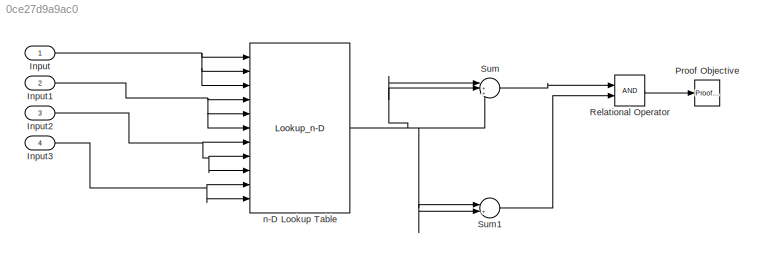
MODEL slx_0ce27d9a9ac0
KIND model
CONFIG AbsTol = auto
CONFIG EnableMultiTasking = off
CONFIG FixedStep = auto
CONFIG MaxStep = auto
CONFIG MinStep = auto
CONFIG RelTol = 1e-3
CONFIG SampleTimeConstraint = Unconstrained
CONFIG Solver = FixedStepAuto
CONFIG SolverName = FixedStepAuto
CONFIG StartTime = 0.0
CONFIG StopTime = 10.0
BLOCK [Inport] Input
  IconDisplay = Port number
  OutDataTypeStr = double
  OutMax = 1.0
  OutMin = 0.0
BLOCK [Inport] Input1
  IconDisplay = Port number
  OutDataTypeStr = double
  OutMax = 1.0
  OutMin = 0.0
  Port = 2
BLOCK [Inport] Input2
  IconDisplay = Port number
  OutDataTypeStr = double
  OutMax = 1.0
  OutMin = 0.0
  Port = 3
BLOCK [Inport] Input3
  IconDisplay = Port number
  OutDataTypeStr = double
  OutMax = 1.0
  OutMin = 0.0
  Port = 4
BLOCK [Reference] Proof Objective  REF=sldvlib/Objectives and Constraints/Proof Objective
  AttributesFormatString = %<intervals>
  Ports = [1]
  SourceBlock = sldvlib/Objectives and Constraints/Proof Objective
  SourceProductBaseCode = DV
  SourceProductName = Simulink Design Verifier
  SourceType = Design Verifier Proof Objective
BLOCK [RelationalOperator] Relational Operator
  InputSameDT = off
  OutDataTypeStr = boolean
  Ports = [2, 1]
  RndMeth = Simplest
BLOCK [Sum] Sum
  IconShape = round
  InputSameDT = off
  Inputs = |+++
  OutDataTypeStr = Inherit: Inherit via internal rule
  Ports = [3, 1]
  SaturateOnIntegerOverflow = off
BLOCK [Sum] Sum1
  IconShape = round
  InputSameDT = off
  Inputs = |++
  OutDataTypeStr = Inherit: Inherit via internal rule
  Ports = [2, 1]
  SaturateOnIntegerOverflow = off
BLOCK [Lookup_n-D] n-D Lookup Table
  BreakpointsForDimension3 = [5, 7]
  InternalRulePriority = Speed
  NumberOfTableDimensions = 11
  OutDataTypeStr = double
  OutMax = 1
  OutMin = 0
  Ports = [11, 1]
  RndMeth = Simplest
  Table = reshape(repmat([4 5 6;16 19 20;10 18 23],1,2),[3,3,2])
NET Input1:1 -> n-D Lookup Table:4, n-D Lookup Table:5, n-D Lookup Table:6
NET Input2:1 -> n-D Lookup Table:7, n-D Lookup Table:8, n-D Lookup Table:9
NET Input3:1 -> n-D Lookup Table:10, n-D Lookup Table:11
NET Input:1 -> n-D Lookup Table:1, n-D Lookup Table:2, n-D Lookup Table:3
LINE Relational Operator:1 -> Proof Objective:1
LINE Sum1:1 -> Relational Operator:2
LINE Sum:1 -> Relational Operator:1
NET n-D Lookup Table:1 -> Sum1:1, Sum1:2, Sum:1, Sum:2, Sum:3
note: NET lines group one-source signal fan-out (src -> all destinations, sorted); 1:1 wires keep LINE
